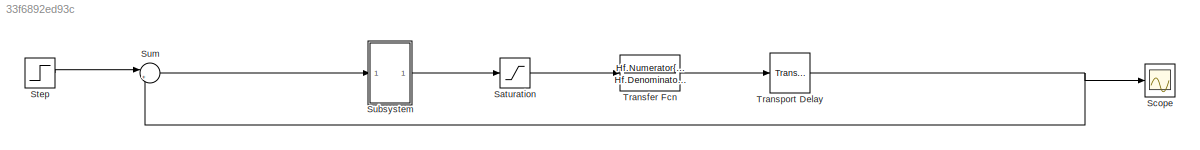
MODEL slx_33f6892ed93c
KIND model
CONFIG AbsTol = auto
CONFIG EnableMultiTasking = off
CONFIG FixedStep = auto
CONFIG MaxStep = auto
CONFIG MinStep = auto
CONFIG RelTol = 1e-3
CONFIG SampleTimeConstraint = Unconstrained
CONFIG SolverName = VariableStepAuto
CONFIG StartTime = 0.0
CONFIG StopTime = 10.0
BLOCK [Saturate] Saturation
  LowerLimit = -100
  UpperLimit = 100
BLOCK [Scope] Scope
  Floating = off
  NumInputPorts = 2
  ScopeSpecificationString = Simulink.scopes.TimeScopeBlockCfg('CurrentConfiguration', extmgr.ConfigurationSet(extmgr.Configuration('Core','General UI',true),extmgr.Configuration('Core','Source UI',true),extmgr.Configuration('Sources','WiredSimulink',true),extmgr.Configuration('Visuals','Time Domain',true,'SerializedDisplays',{struct('MinYLimReal','-0.10548','MaxYLimReal','0.94929','YLabelReal','','MinYLimMag','0.00000','MaxY...<+1409ch>
BLOCK [Step] Step
  SampleTime = 0
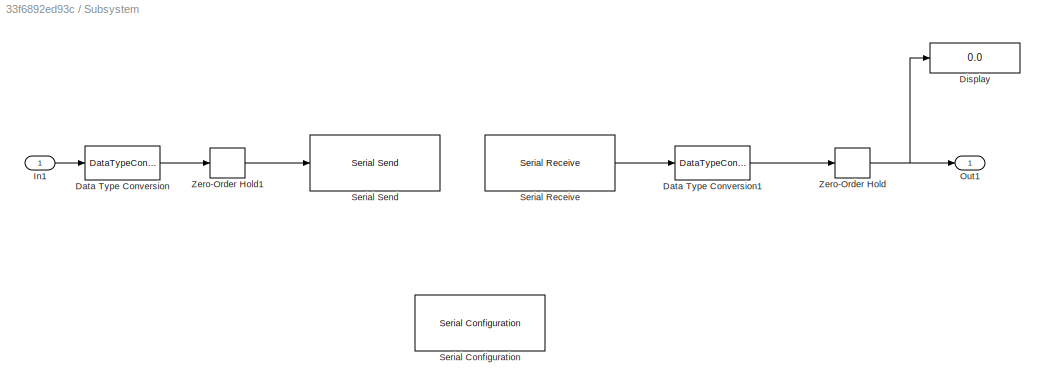
BLOCK [SubSystem] Subsystem
BLOCK [DataTypeConversion] Subsystem/Data Type Conversion
  OutDataTypeStr = single
  RndMeth = Floor
  SaturateOnIntegerOverflow = off
BLOCK [DataTypeConversion] Subsystem/Data Type Conversion1
  OutDataTypeStr = double
  RndMeth = Floor
  SaturateOnIntegerOverflow = off
BLOCK [Display] Subsystem/Display
  Decimation = 1
BLOCK [Inport] Subsystem/In1
BLOCK [Outport] Subsystem/Out1
BLOCK [Reference] Subsystem/Serial Configuration  REF=instrumentseriallib/Serial Configuration
  LibrarySourceBlock = instrumentlib/Serial Configuration
  Priority = -200000
  SourceBlock = instrumentseriallib/Serial Configuration
  SourceType = system.SerialConfiguration
BLOCK [Reference] Subsystem/Serial Receive  REF=instrumentseriallib/Serial Receive
  LibrarySourceBlock = instrumentlib/Serial Receive
  Priority = 1
  SourceBlock = instrumentseriallib/Serial Receive
  SourceType = system.SerialReceive
BLOCK [Reference] Subsystem/Serial Send  REF=instrumentseriallib/Serial Send
  LibrarySourceBlock = instrumentlib/Serial Send
  Priority = 1
  SourceBlock = instrumentseriallib/Serial Send
  SourceType = system.SerialSend
BLOCK [ZeroOrderHold] Subsystem/Zero-Order Hold
  SampleTime = -1
BLOCK [ZeroOrderHold] Subsystem/Zero-Order Hold1
  SampleTime = -1
BLOCK [Sum] Sum
  Inputs = |+-
BLOCK [TransferFcn] Transfer Fcn
  Denominator = Hf.Denominator{:}
  Numerator = Hf.Numerator{:}
BLOCK [TransportDelay] Transport Delay
LINE Saturation:1 -> Transfer Fcn:1
LINE Step:1 -> Sum:1
LINE Subsystem/Data Type Conversion1:1 -> Subsystem/Zero-Order Hold:1
LINE Subsystem/Data Type Conversion:1 -> Subsystem/Zero-Order Hold1:1
LINE Subsystem/In1:1 -> Subsystem/Data Type Conversion:1
LINE Subsystem/Serial Receive:1 -> Subsystem/Data Type Conversion1:1
LINE Subsystem/Zero-Order Hold1:1 -> Subsystem/Serial Send:1
NET Subsystem/Zero-Order Hold:1 -> Subsystem/Display:1, Subsystem/Out1:1
LINE Subsystem:1 -> Saturation:1
LINE Sum:1 -> Subsystem:1
LINE Transfer Fcn:1 -> Transport Delay:1
NET Transport Delay:1 -> Scope:1, Sum:2
note: NET lines group one-source signal fan-out (src -> all destinations, sorted); 1:1 wires keep LINE
